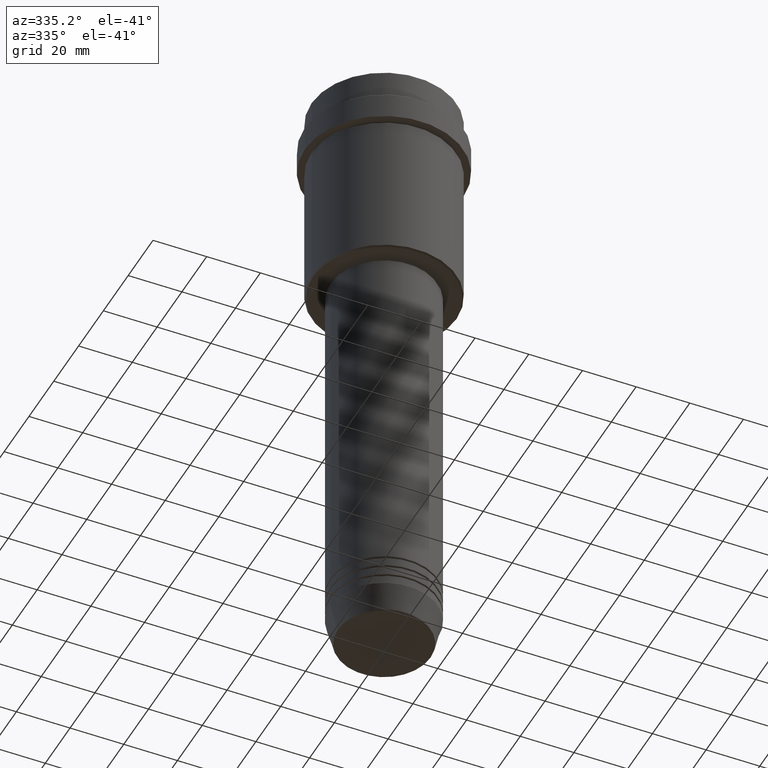
[diagram: clean part render]
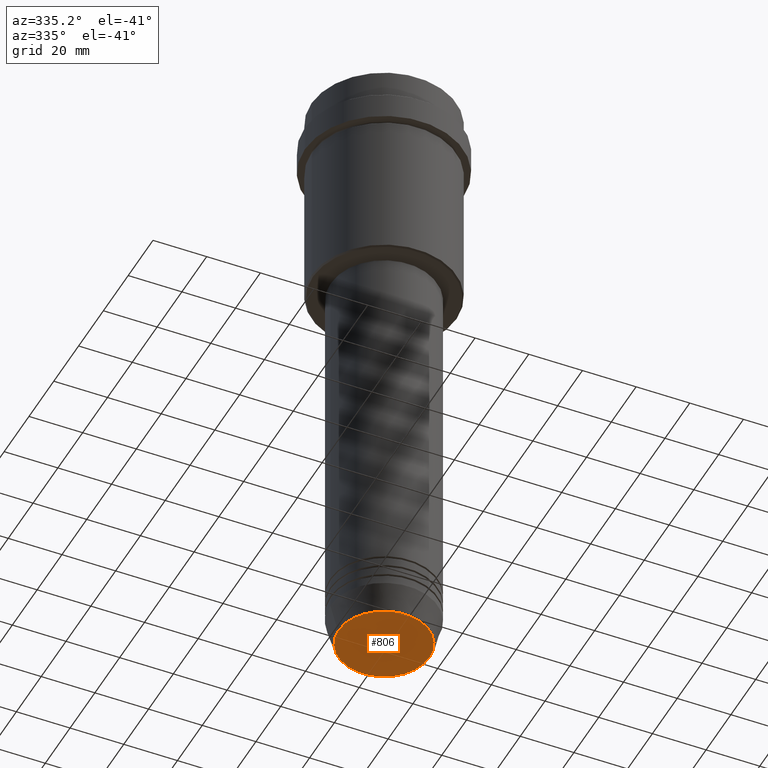
[diagram: same view with one face highlighted and labeled with its STEP entity id]
A machine part, auxiliary view. The second image highlights one B-rep face of the part: STEP entity #806.
In plain terms, the highlighted planar face has unit normal (0, -0, 1).
Its self-contained STEP definition (entity closure, byte-faithful):
#21 = CARTESIAN_POINT ( 'NONE',  ( -16.93684458169929741, 2.103738199747890381E-15, -233.0000000000000284 ) ) ;
#111 = DIRECTION ( 'NONE',  ( 1.000000000000000000, 0.000000000000000000, 0.000000000000000000 ) ) ;
#157 = DIRECTION ( 'NONE',  ( 0.000000000000000000, 0.000000000000000000, -1.000000000000000000 ) ) ;
#195 = CARTESIAN_POINT ( 'NONE',  ( 0.000000000000000000, 0.000000000000000000, -233.0000000000000284 ) ) ;
#212 = DIRECTION ( 'NONE',  ( 0.000000000000000000, -0.000000000000000000, 1.000000000000000000 ) ) ;
#316 = EDGE_CURVE ( 'NONE', #557, #1294, #344, .T. ) ;
#344 = CIRCLE ( 'NONE', #847, 16.93684458169929741 ) ;
#378 = ORIENTED_EDGE ( 'NONE', *, *, #316, .T. ) ;
#424 = DIRECTION ( 'NONE',  ( 0.000000000000000000, 0.000000000000000000, -1.000000000000000000 ) ) ;
#433 = PLANE ( 'NONE',  #1180 ) ;
#551 = AXIS2_PLACEMENT_3D ( 'NONE', #817, #157, #702 ) ;
#557 = VERTEX_POINT ( 'NONE', #21 ) ;
#581 = ORIENTED_EDGE ( 'NONE', *, *, #1050, .T. ) ;
#638 = FACE_OUTER_BOUND ( 'NONE', #741, .T. ) ;
#702 = DIRECTION ( 'NONE',  ( 1.000000000000000000, 0.000000000000000000, 0.000000000000000000 ) ) ;
#741 = EDGE_LOOP ( 'NONE', ( #581, #378 ) ) ;
#806 = ADVANCED_FACE ( 'NONE', ( #638 ), #433, .F. ) ;
#817 = CARTESIAN_POINT ( 'NONE',  ( 0.000000000000000000, 0.000000000000000000, -233.0000000000000284 ) ) ;
#847 = AXIS2_PLACEMENT_3D ( 'NONE', #195, #424, #111 ) ;
#868 = DIRECTION ( 'NONE',  ( 1.000000000000000000, 0.000000000000000000, 0.000000000000000000 ) ) ;
#888 = CARTESIAN_POINT ( 'NONE',  ( 16.93684458169929741, 0.000000000000000000, -233.0000000000000284 ) ) ;
#1050 = EDGE_CURVE ( 'NONE', #1294, #557, #1069, .T. ) ;
#1069 = CIRCLE ( 'NONE', #551, 16.93684458169929741 ) ;
#1180 = AXIS2_PLACEMENT_3D ( 'NONE', #1202, #212, #868 ) ;
#1202 = CARTESIAN_POINT ( 'NONE',  ( 0.000000000000000000, 0.000000000000000000, -233.0000000000000284 ) ) ;
#1294 = VERTEX_POINT ( 'NONE', #888 ) ;